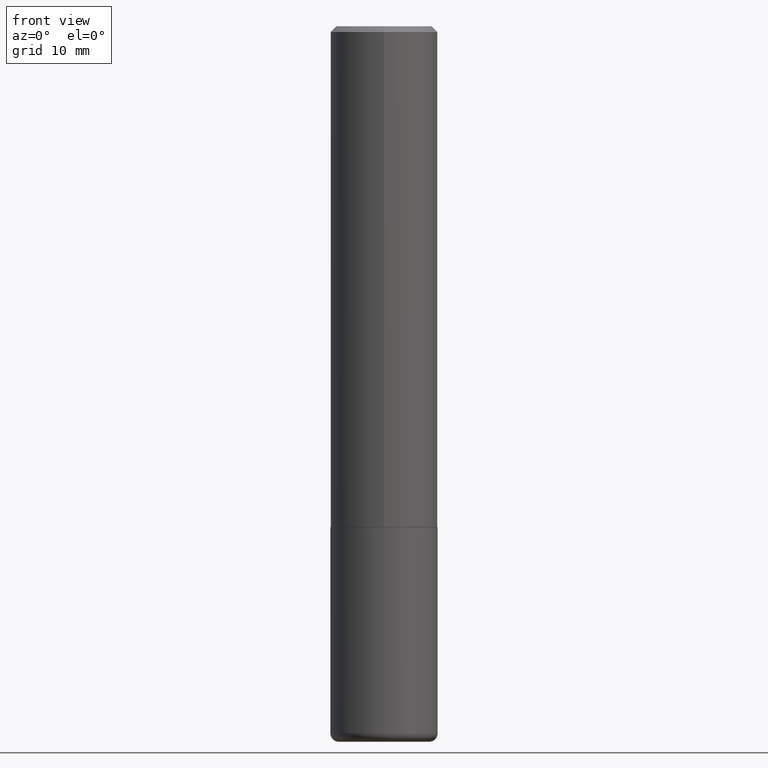
[diagram: clean part render]
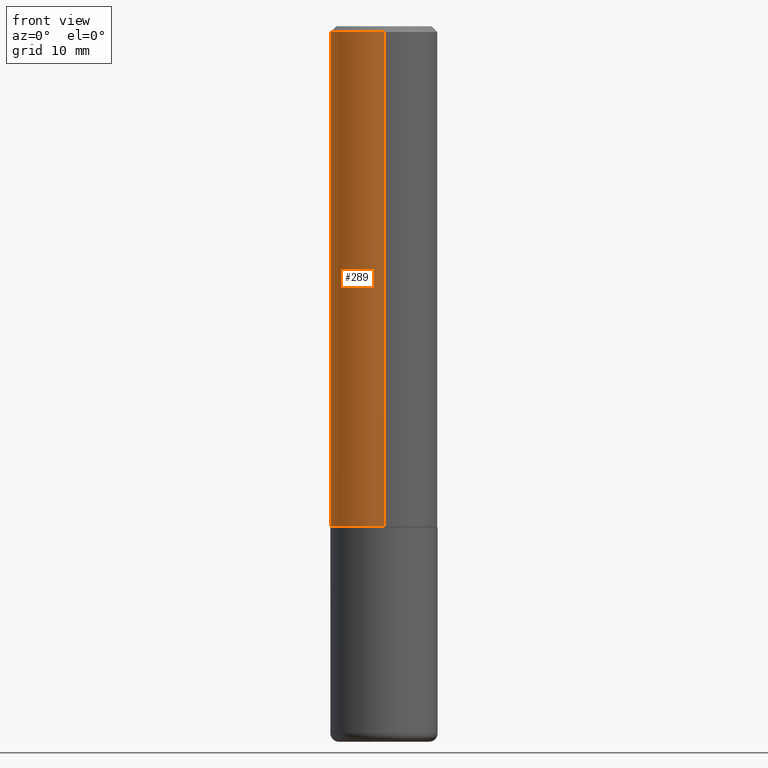
[diagram: same view with one face highlighted and labeled with its STEP entity id]
A machine part, front view. The second image highlights one B-rep face of the part: STEP entity #289.
In plain terms, the highlighted cylindrical surface (partial cylindrical patch) has radius 4.7625 mm, axis along (-0, 0, 1).
Its self-contained STEP definition (entity closure, byte-faithful):
#6 = AXIS2_PLACEMENT_3D ( 'NONE', #69, #173, #301 ) ;
#9 = FACE_OUTER_BOUND ( 'NONE', #223, .T. ) ;
#19 = CARTESIAN_POINT ( 'NONE',  ( -1.309305502066175797E-15, -0.1875000000000001110, 6.548723509394135303E-16 ) ) ;
#29 = AXIS2_PLACEMENT_3D ( 'NONE', #410, #139, #370 ) ;
#40 = LINE ( 'NONE', #98, #70 ) ;
#48 = ORIENTED_EDGE ( 'NONE', *, *, #281, .F. ) ;
#68 = DIRECTION ( 'NONE',  ( -6.982962677686266711E-15, -1.000000000000000000, 3.492652538343536856E-15 ) ) ;
#69 = CARTESIAN_POINT ( 'NONE',  ( 4.889301923890413792E-31, -6.985305076687091116E-17, -0.02000000000000005246 ) ) ;
#70 = VECTOR ( 'NONE', #328, 39.37007874015748143 ) ;
#98 = CARTESIAN_POINT ( 'NONE',  ( 1.332267629550188440E-15, 0.1875000000000001110, -6.548723509394135303E-16 ) ) ;
#101 = CARTESIAN_POINT ( 'NONE',  ( 0.000000000000000000, 0.000000000000000000, 0.000000000000000000 ) ) ;
#102 = CYLINDRICAL_SURFACE ( 'NONE', #172, 0.1875000000000001110 ) ;
#106 = CARTESIAN_POINT ( 'NONE',  ( 1.332267629550210528E-15, 0.1874999999999941713, -1.749000000000000554 ) ) ;
#120 = CARTESIAN_POINT ( 'NONE',  ( -1.286343374582161379E-15, -0.1875000000000000555, -0.01999999999999939673 ) ) ;
#122 = VERTEX_POINT ( 'NONE', #120 ) ;
#139 = DIRECTION ( 'NONE',  ( -2.444650961945200818E-29, 3.492652538343536856E-15, 1.000000000000000000 ) ) ;
#143 = ORIENTED_EDGE ( 'NONE', *, *, #209, .F. ) ;
#172 = AXIS2_PLACEMENT_3D ( 'NONE', #101, #365, #68 ) ;
#173 = DIRECTION ( 'NONE',  ( -2.444650961945200818E-29, 3.492652538343536856E-15, 1.000000000000000000 ) ) ;
#199 = CIRCLE ( 'NONE', #6, 0.1874999999999999722 ) ;
#209 = EDGE_CURVE ( 'NONE', #378, #214, #40, .T. ) ;
#210 = CIRCLE ( 'NONE', #29, 0.1875000000000002776 ) ;
#214 = VERTEX_POINT ( 'NONE', #393 ) ;
#223 = EDGE_LOOP ( 'NONE', ( #143, #311, #335, #48 ) ) ;
#281 = EDGE_CURVE ( 'NONE', #214, #122, #199, .T. ) ;
#289 = ADVANCED_FACE ( 'NONE', ( #9 ), #102, .T. ) ;
#301 = DIRECTION ( 'NONE',  ( -6.982962677686266711E-15, -1.000000000000000000, 3.483106191921935949E-15 ) ) ;
#311 = ORIENTED_EDGE ( 'NONE', *, *, #343, .T. ) ;
#328 = DIRECTION ( 'NONE',  ( -2.444650961945200818E-29, 3.492652538343536856E-15, 1.000000000000000000 ) ) ;
#331 = VECTOR ( 'NONE', #339, 39.37007874015748143 ) ;
#335 = ORIENTED_EDGE ( 'NONE', *, *, #364, .T. ) ;
#339 = DIRECTION ( 'NONE',  ( -2.444650961945200818E-29, 3.492652538343536856E-15, 1.000000000000000000 ) ) ;
#340 = VERTEX_POINT ( 'NONE', #371 ) ;
#343 = EDGE_CURVE ( 'NONE', #378, #340, #210, .T. ) ;
#364 = EDGE_CURVE ( 'NONE', #340, #122, #403, .T. ) ;
#365 = DIRECTION ( 'NONE',  ( -2.444650961945200818E-29, 3.492652538343536856E-15, 1.000000000000000000 ) ) ;
#370 = DIRECTION ( 'NONE',  ( -6.982962677686266711E-15, -1.000000000000000000, 2.913971193241876428E-15 ) ) ;
#371 = CARTESIAN_POINT ( 'NONE',  ( -1.309305502066134185E-15, -0.1875000000000064115, -1.748999999999999666 ) ) ;
#378 = VERTEX_POINT ( 'NONE', #106 ) ;
#393 = CARTESIAN_POINT ( 'NONE',  ( 1.309305502066175205E-15, 0.1874999999999999167, -0.02000000000000070471 ) ) ;
#403 = LINE ( 'NONE', #19, #331 ) ;
#410 = CARTESIAN_POINT ( 'NONE',  ( 4.275694532442156646E-29, -6.108649289562846914E-15, -1.749000000000000110 ) ) ;